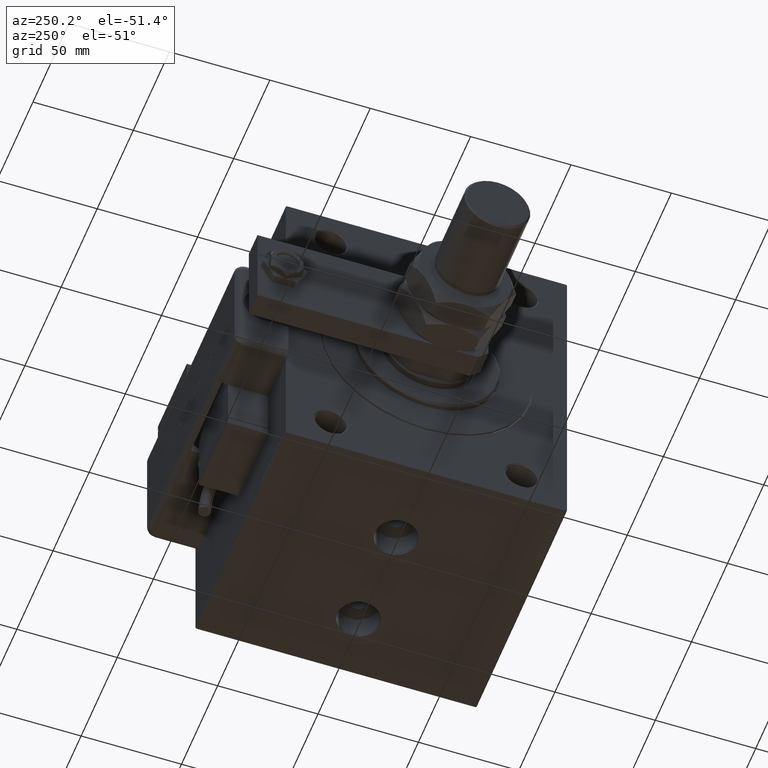
[diagram: clean part render]
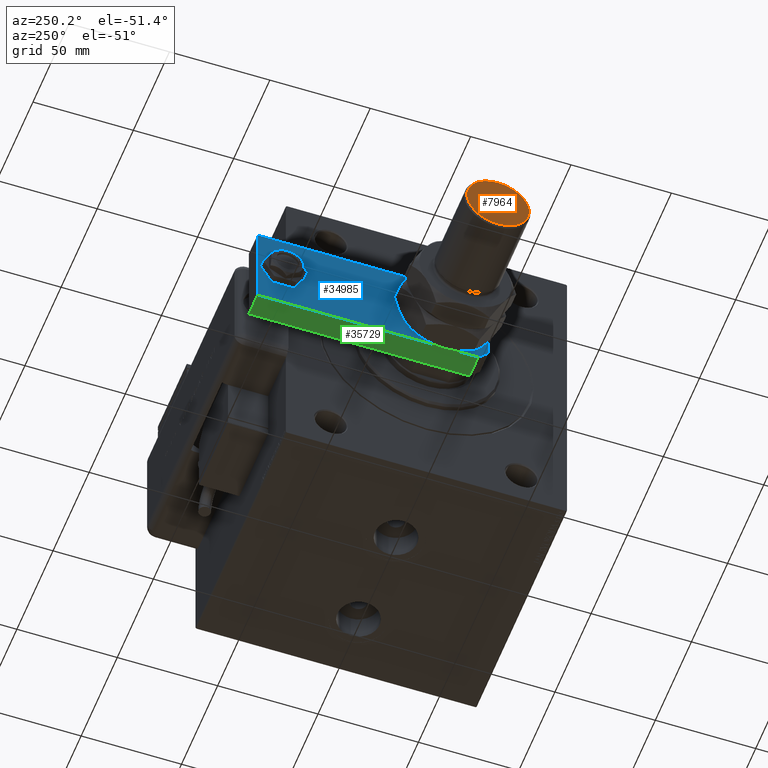
[diagram: same view with three faces highlighted in distinct colors, each labeled with its STEP entity id]
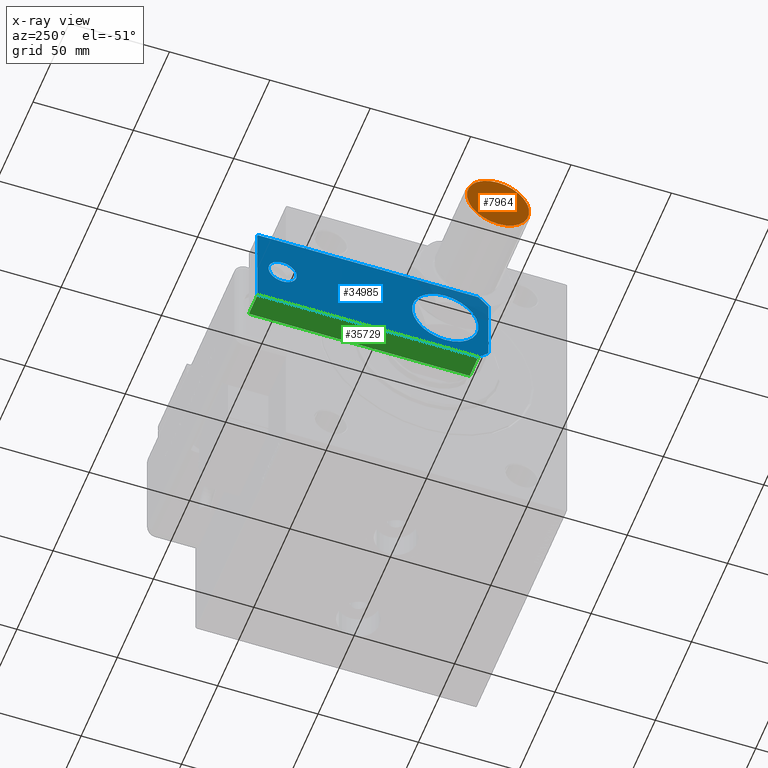
[diagram: x-ray of the same camera — body ghosted, the three highlighted faces saturated]
A machine part, auxiliary view with three faces highlighted in distinct colors.
The next image is the same camera in x-ray (body ghosted, the three faces saturated) — at least one of them is partly hidden behind the body in this view.
Their STEP definitions:

[orange] entity #7964 — the highlighted planar face has unit normal (-1, 0, 0).
#2563 = CIRCLE ( 'NONE', #62496, 15.50000000000001421 ) ;
#7964 = ADVANCED_FACE ( 'NONE', ( #38269 ), #28115, .T. ) ;
#9218 = DIRECTION ( 'NONE',  ( 0.000000000000000000, 0.000000000000000000, 1.000000000000000000 ) ) ;
#14277 = DIRECTION ( 'NONE',  ( 1.000000000000000000, 0.000000000000000000, 0.000000000000000000 ) ) ;
#15943 = EDGE_CURVE ( 'NONE', #62167, #42707, #52105, .T. ) ;
#17017 = EDGE_LOOP ( 'NONE', ( #60518, #59518 ) ) ;
#18291 = AXIS2_PLACEMENT_3D ( 'NONE', #56754, #38584, #42733 ) ;
#28115 = PLANE ( 'NONE',  #18291 ) ;
#34283 = CARTESIAN_POINT ( 'NONE',  ( 0.000000000000000000, 0.000000000000000000, 73.00000000000000000 ) ) ;
#38135 = CARTESIAN_POINT ( 'NONE',  ( 0.000000000000000000, 0.000000000000000000, 73.00000000000000000 ) ) ;
#38269 = FACE_OUTER_BOUND ( 'NONE', #17017, .T. ) ;
#38584 = DIRECTION ( 'NONE',  ( 0.000000000000000000, 0.000000000000000000, 1.000000000000000000 ) ) ;
#42030 = EDGE_CURVE ( 'NONE', #42707, #62167, #2563, .T. ) ;
#42707 = VERTEX_POINT ( 'NONE', #55938 ) ;
#42733 = DIRECTION ( 'NONE',  ( 1.000000000000000000, 0.000000000000000000, -0.000000000000000000 ) ) ;
#44793 = DIRECTION ( 'NONE',  ( 0.000000000000000000, 0.000000000000000000, 1.000000000000000000 ) ) ;
#47988 = DIRECTION ( 'NONE',  ( 1.000000000000000000, 0.000000000000000000, 0.000000000000000000 ) ) ;
#52105 = CIRCLE ( 'NONE', #62299, 15.50000000000001421 ) ;
#55938 = CARTESIAN_POINT ( 'NONE',  ( 15.50000000000001421, 1.959434878635766315E-15, 73.00000000000000000 ) ) ;
#56754 = CARTESIAN_POINT ( 'NONE',  ( 0.000000000000000000, 0.000000000000000000, 73.00000000000000000 ) ) ;
#59518 = ORIENTED_EDGE ( 'NONE', *, *, #42030, .T. ) ;
#60518 = ORIENTED_EDGE ( 'NONE', *, *, #15943, .T. ) ;
#62167 = VERTEX_POINT ( 'NONE', #62219 ) ;
#62219 = CARTESIAN_POINT ( 'NONE',  ( -15.50000000000001421, 0.000000000000000000, 73.00000000000000000 ) ) ;
#62299 = AXIS2_PLACEMENT_3D ( 'NONE', #38135, #9218, #47988 ) ;
#62496 = AXIS2_PLACEMENT_3D ( 'NONE', #34283, #44793, #14277 ) ;

[blue] entity #34985 — the highlighted planar face has unit normal (1, -0, -0).
#20 = DIRECTION ( 'NONE',  ( -0.7071067811865455743, 0.7071067811865493491, -0.000000000000000000 ) ) ;
#436 = CARTESIAN_POINT ( 'NONE',  ( 1.963948872468190046E-17, 102.5000000000000142, 0.000000000000000000 ) ) ;
#1284 = VERTEX_POINT ( 'NONE', #20381 ) ;
#1289 = CARTESIAN_POINT ( 'NONE',  ( 7.000000000000000000, 102.5000000000000142, 0.000000000000000000 ) ) ;
#3069 = FACE_BOUND ( 'NONE', #18849, .T. ) ;
#3951 = CARTESIAN_POINT ( 'NONE',  ( -17.50000000000000355, 0.000000000000000000, 0.000000000000000000 ) ) ;
#5170 = EDGE_CURVE ( 'NONE', #42197, #34916, #34405, .T. ) ;
#6891 = VERTEX_POINT ( 'NONE', #24340 ) ;
#8682 = AXIS2_PLACEMENT_3D ( 'NONE', #59647, #49130, #15438 ) ;
#9499 = DIRECTION ( 'NONE',  ( -9.050731179009427836E-17, 1.000000000000000000, 0.000000000000000000 ) ) ;
#10210 = ORIENTED_EDGE ( 'NONE', *, *, #22573, .T. ) ;
#10221 = CARTESIAN_POINT ( 'NONE',  ( -22.50000000000001066, 5.000000000000031974, 0.000000000000000000 ) ) ;
#10262 = DIRECTION ( 'NONE',  ( 1.000000000000000000, 0.000000000000000000, 0.000000000000000000 ) ) ;
#11367 = VECTOR ( 'NONE', #10262, 1000.000000000000000 ) ;
#11557 = EDGE_LOOP ( 'NONE', ( #55494, #43805 ) ) ;
#12443 = VERTEX_POINT ( 'NONE', #1289 ) ;
#13027 = AXIS2_PLACEMENT_3D ( 'NONE', #17384, #36778, #56201 ) ;
#13453 = EDGE_LOOP ( 'NONE', ( #30284, #46660, #13479, #32715, #30586, #10210 ) ) ;
#13479 = ORIENTED_EDGE ( 'NONE', *, *, #31216, .F. ) ;
#13577 = LINE ( 'NONE', #52996, #39422 ) ;
#14379 = VERTEX_POINT ( 'NONE', #36102 ) ;
#14742 = AXIS2_PLACEMENT_3D ( 'NONE', #436, #58657, #28150 ) ;
#15438 = DIRECTION ( 'NONE',  ( 1.000000000000000000, 0.000000000000000000, 0.000000000000000000 ) ) ;
#16295 = VERTEX_POINT ( 'NONE', #49409 ) ;
#16774 = DIRECTION ( 'NONE',  ( -0.7071067811865493491, -0.7071067811865455743, -0.000000000000000000 ) ) ;
#17384 = CARTESIAN_POINT ( 'NONE',  ( 0.000000000000000000, 0.000000000000000000, 0.000000000000000000 ) ) ;
#17736 = VECTOR ( 'NONE', #16774, 1000.000000000000114 ) ;
#17750 = VERTEX_POINT ( 'NONE', #10221 ) ;
#18849 = EDGE_LOOP ( 'NONE', ( #28049, #48335 ) ) ;
#19813 = VERTEX_POINT ( 'NONE', #48389 ) ;
#19924 = EDGE_CURVE ( 'NONE', #6891, #19813, #58577, .T. ) ;
#20381 = CARTESIAN_POINT ( 'NONE',  ( -16.50000000000000000, 21.50000000000000355, 0.000000000000000000 ) ) ;
#20738 = CARTESIAN_POINT ( 'NONE',  ( -22.50000000000001066, 0.000000000000000000, 0.000000000000000000 ) ) ;
#20915 = CARTESIAN_POINT ( 'NONE',  ( 22.50000000000001066, 5.000000000000004441, 0.000000000000000000 ) ) ;
#21409 = DIRECTION ( 'NONE',  ( 1.000000000000000000, 0.000000000000000000, 0.000000000000000000 ) ) ;
#22151 = PLANE ( 'NONE',  #13027 ) ;
#22573 = EDGE_CURVE ( 'NONE', #50853, #34916, #40946, .T. ) ;
#23667 = CIRCLE ( 'NONE', #62266, 16.50000000000000000 ) ;
#23920 = CARTESIAN_POINT ( 'NONE',  ( 22.50000000000001066, 5.000000000000003553, 0.000000000000000000 ) ) ;
#24069 = EDGE_CURVE ( 'NONE', #14379, #12443, #42156, .T. ) ;
#24213 = CARTESIAN_POINT ( 'NONE',  ( -17.50000000000000355, 0.000000000000000000, 0.000000000000000000 ) ) ;
#24340 = CARTESIAN_POINT ( 'NONE',  ( 22.50000000000000000, 115.0000000000000000, 0.000000000000000000 ) ) ;
#27778 = VECTOR ( 'NONE', #58267, 1000.000000000000000 ) ;
#28049 = ORIENTED_EDGE ( 'NONE', *, *, #47128, .T. ) ;
#28150 = DIRECTION ( 'NONE',  ( 1.000000000000000000, 0.000000000000000000, 0.000000000000000000 ) ) ;
#28493 = FACE_BOUND ( 'NONE', #11557, .T. ) ;
#29528 = CARTESIAN_POINT ( 'NONE',  ( 22.50000000000001066, 0.000000000000000000, 0.000000000000000000 ) ) ;
#30284 = ORIENTED_EDGE ( 'NONE', *, *, #5170, .F. ) ;
#30586 = ORIENTED_EDGE ( 'NONE', *, *, #30872, .F. ) ;
#30872 = EDGE_CURVE ( 'NONE', #50853, #6891, #43819, .T. ) ;
#31216 = EDGE_CURVE ( 'NONE', #19813, #17750, #13577, .T. ) ;
#31251 = AXIS2_PLACEMENT_3D ( 'NONE', #31688, #40593, #51063 ) ;
#31269 = CARTESIAN_POINT ( 'NONE',  ( 0.000000000000000000, 21.50000000000000355, 0.000000000000000000 ) ) ;
#31688 = CARTESIAN_POINT ( 'NONE',  ( 1.963948872468190046E-17, 102.5000000000000142, 0.000000000000000000 ) ) ;
#32019 = FACE_OUTER_BOUND ( 'NONE', #13453, .T. ) ;
#32715 = ORIENTED_EDGE ( 'NONE', *, *, #19924, .F. ) ;
#33228 = CIRCLE ( 'NONE', #31251, 7.000000000000000000 ) ;
#34059 = LINE ( 'NONE', #24213, #45361 ) ;
#34405 = LINE ( 'NONE', #20738, #11367 ) ;
#34916 = VERTEX_POINT ( 'NONE', #46008 ) ;
#34985 = ADVANCED_FACE ( 'NONE', ( #32019, #28493, #3069 ), #22151, .F. ) ;
#36102 = CARTESIAN_POINT ( 'NONE',  ( -7.000000000000000000, 102.5000000000000142, 0.000000000000000000 ) ) ;
#36104 = CIRCLE ( 'NONE', #8682, 16.50000000000000000 ) ;
#36778 = DIRECTION ( 'NONE',  ( -0.000000000000000000, 0.000000000000000000, 1.000000000000000000 ) ) ;
#36981 = EDGE_CURVE ( 'NONE', #16295, #1284, #23667, .T. ) ;
#39422 = VECTOR ( 'NONE', #48509, 1000.000000000000000 ) ;
#40593 = DIRECTION ( 'NONE',  ( 0.000000000000000000, 0.000000000000000000, 1.000000000000000000 ) ) ;
#40946 = LINE ( 'NONE', #20915, #17736 ) ;
#42156 = CIRCLE ( 'NONE', #14742, 7.000000000000000000 ) ;
#42197 = VERTEX_POINT ( 'NONE', #3951 ) ;
#43805 = ORIENTED_EDGE ( 'NONE', *, *, #50380, .T. ) ;
#43819 = LINE ( 'NONE', #29528, #58734 ) ;
#44581 = CARTESIAN_POINT ( 'NONE',  ( 22.50000000000000000, 115.0000000000000000, 0.000000000000000000 ) ) ;
#45361 = VECTOR ( 'NONE', #20, 1000.000000000000114 ) ;
#46008 = CARTESIAN_POINT ( 'NONE',  ( 17.49999999999997868, 0.000000000000000000, 0.000000000000000000 ) ) ;
#46660 = ORIENTED_EDGE ( 'NONE', *, *, #48616, .T. ) ;
#47128 = EDGE_CURVE ( 'NONE', #1284, #16295, #36104, .T. ) ;
#48335 = ORIENTED_EDGE ( 'NONE', *, *, #36981, .T. ) ;
#48389 = CARTESIAN_POINT ( 'NONE',  ( -22.50000000000000355, 115.0000000000000000, 0.000000000000000000 ) ) ;
#48509 = DIRECTION ( 'NONE',  ( -6.033820786006285224E-17, -1.000000000000000000, 0.000000000000000000 ) ) ;
#48616 = EDGE_CURVE ( 'NONE', #42197, #17750, #34059, .T. ) ;
#49130 = DIRECTION ( 'NONE',  ( 0.000000000000000000, 0.000000000000000000, 1.000000000000000000 ) ) ;
#49409 = CARTESIAN_POINT ( 'NONE',  ( 16.50000000000000000, 21.50000000000000711, 0.000000000000000000 ) ) ;
#50380 = EDGE_CURVE ( 'NONE', #12443, #14379, #33228, .T. ) ;
#50853 = VERTEX_POINT ( 'NONE', #23920 ) ;
#51063 = DIRECTION ( 'NONE',  ( 1.000000000000000000, 0.000000000000000000, 0.000000000000000000 ) ) ;
#52996 = CARTESIAN_POINT ( 'NONE',  ( -22.50000000000000355, 115.0000000000000000, 0.000000000000000000 ) ) ;
#55494 = ORIENTED_EDGE ( 'NONE', *, *, #24069, .T. ) ;
#56201 = DIRECTION ( 'NONE',  ( 1.000000000000000000, 0.000000000000000000, 0.000000000000000000 ) ) ;
#58267 = DIRECTION ( 'NONE',  ( -1.000000000000000000, 0.000000000000000000, 0.000000000000000000 ) ) ;
#58577 = LINE ( 'NONE', #44581, #27778 ) ;
#58657 = DIRECTION ( 'NONE',  ( 0.000000000000000000, 0.000000000000000000, 1.000000000000000000 ) ) ;
#58734 = VECTOR ( 'NONE', #9499, 1000.000000000000000 ) ;
#59647 = CARTESIAN_POINT ( 'NONE',  ( 0.000000000000000000, 21.50000000000000355, 0.000000000000000000 ) ) ;
#59911 = DIRECTION ( 'NONE',  ( 0.000000000000000000, 0.000000000000000000, 1.000000000000000000 ) ) ;
#62266 = AXIS2_PLACEMENT_3D ( 'NONE', #31269, #59911, #21409 ) ;

[green] entity #35729 — the highlighted planar face has unit normal (0, -0, 1).
#2455 = CARTESIAN_POINT ( 'NONE',  ( 22.50000000000001066, 0.000000000000000000, 12.00000000000000000 ) ) ;
#5406 = VECTOR ( 'NONE', #27521, 1000.000000000000000 ) ;
#6552 = VECTOR ( 'NONE', #53438, 1000.000000000000000 ) ;
#6875 = VERTEX_POINT ( 'NONE', #54556 ) ;
#6891 = VERTEX_POINT ( 'NONE', #24340 ) ;
#8104 = CARTESIAN_POINT ( 'NONE',  ( 22.50000000000001066, 5.000000000000003553, 12.00000000000000000 ) ) ;
#8140 = VECTOR ( 'NONE', #53747, 1000.000000000000000 ) ;
#9499 = DIRECTION ( 'NONE',  ( -9.050731179009427836E-17, 1.000000000000000000, 0.000000000000000000 ) ) ;
#10280 = ORIENTED_EDGE ( 'NONE', *, *, #60595, .F. ) ;
#10930 = EDGE_LOOP ( 'NONE', ( #18705, #53866, #30980, #10280 ) ) ;
#11402 = DIRECTION ( 'NONE',  ( -1.000000000000000000, -9.050731179009426604E-17, 0.000000000000000000 ) ) ;
#12603 = CARTESIAN_POINT ( 'NONE',  ( 22.50000000000001066, 0.000000000000000000, 12.00000000000000000 ) ) ;
#16147 = PLANE ( 'NONE',  #40890 ) ;
#18705 = ORIENTED_EDGE ( 'NONE', *, *, #38364, .F. ) ;
#20015 = LINE ( 'NONE', #58207, #8140 ) ;
#22096 = EDGE_CURVE ( 'NONE', #60894, #50853, #32874, .T. ) ;
#23015 = CARTESIAN_POINT ( 'NONE',  ( 22.50000000000001066, 5.000000000000003553, 12.00000000000000000 ) ) ;
#23920 = CARTESIAN_POINT ( 'NONE',  ( 22.50000000000001066, 5.000000000000003553, 0.000000000000000000 ) ) ;
#24340 = CARTESIAN_POINT ( 'NONE',  ( 22.50000000000000000, 115.0000000000000000, 0.000000000000000000 ) ) ;
#27521 = DIRECTION ( 'NONE',  ( -9.050731179009427836E-17, 1.000000000000000000, 0.000000000000000000 ) ) ;
#29528 = CARTESIAN_POINT ( 'NONE',  ( 22.50000000000001066, 0.000000000000000000, 0.000000000000000000 ) ) ;
#30872 = EDGE_CURVE ( 'NONE', #50853, #6891, #43819, .T. ) ;
#30980 = ORIENTED_EDGE ( 'NONE', *, *, #30872, .T. ) ;
#32874 = LINE ( 'NONE', #23015, #6552 ) ;
#35729 = ADVANCED_FACE ( 'NONE', ( #55583 ), #16147, .F. ) ;
#38364 = EDGE_CURVE ( 'NONE', #60894, #6875, #51377, .T. ) ;
#40890 = AXIS2_PLACEMENT_3D ( 'NONE', #2455, #11402, #51101 ) ;
#43819 = LINE ( 'NONE', #29528, #58734 ) ;
#50853 = VERTEX_POINT ( 'NONE', #23920 ) ;
#51101 = DIRECTION ( 'NONE',  ( 9.050731179009426604E-17, -1.000000000000000000, 0.000000000000000000 ) ) ;
#51377 = LINE ( 'NONE', #12603, #5406 ) ;
#53438 = DIRECTION ( 'NONE',  ( 0.000000000000000000, 0.000000000000000000, -1.000000000000000000 ) ) ;
#53747 = DIRECTION ( 'NONE',  ( -0.000000000000000000, -0.000000000000000000, -1.000000000000000000 ) ) ;
#53866 = ORIENTED_EDGE ( 'NONE', *, *, #22096, .T. ) ;
#54556 = CARTESIAN_POINT ( 'NONE',  ( 22.50000000000000000, 115.0000000000000000, 12.00000000000000000 ) ) ;
#55583 = FACE_OUTER_BOUND ( 'NONE', #10930, .T. ) ;
#58207 = CARTESIAN_POINT ( 'NONE',  ( 22.50000000000000000, 115.0000000000000000, 12.00000000000000000 ) ) ;
#58734 = VECTOR ( 'NONE', #9499, 1000.000000000000000 ) ;
#60595 = EDGE_CURVE ( 'NONE', #6875, #6891, #20015, .T. ) ;
#60894 = VERTEX_POINT ( 'NONE', #8104 ) ;